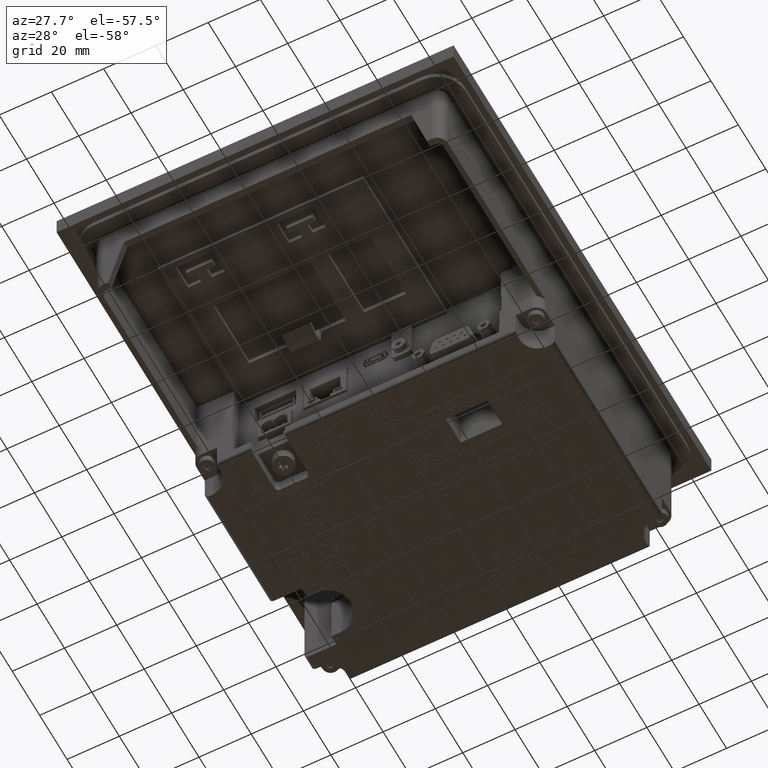
[diagram: clean part render]
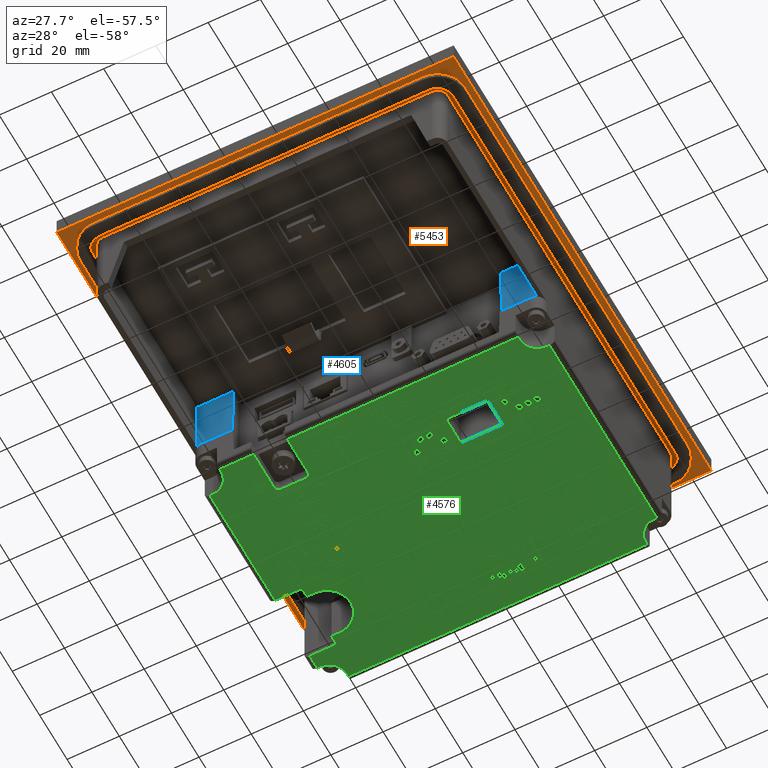
[diagram: same view with three faces highlighted in distinct colors, each labeled with its STEP entity id]
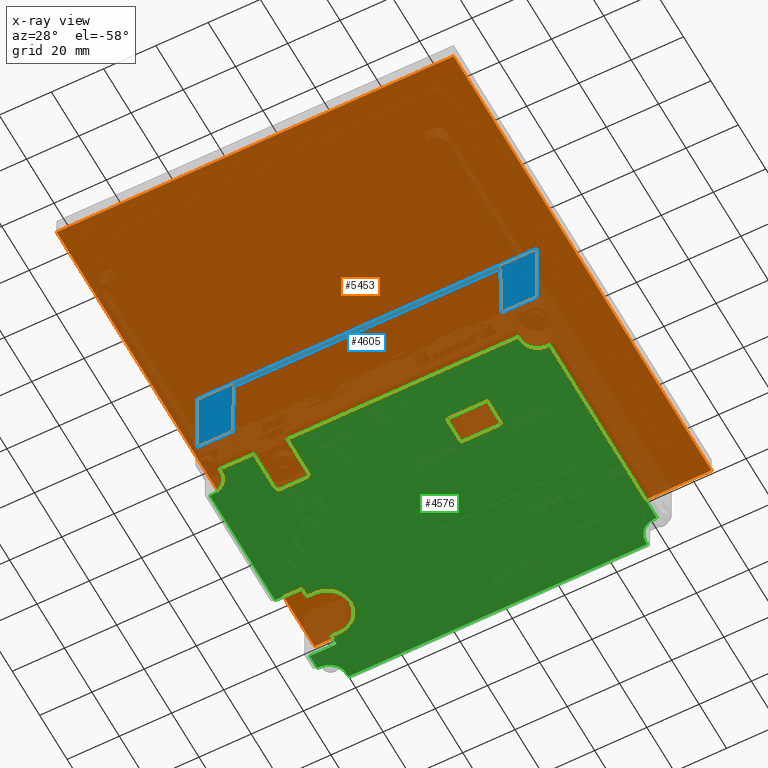
[diagram: x-ray of the same camera — body ghosted, the three highlighted faces saturated]
A machine part, auxiliary view with three faces highlighted in distinct colors.
The next image is the same camera in x-ray (body ghosted, the three faces saturated) — at least one of them is partly hidden behind the body in this view.
Their STEP definitions:

[orange] entity #5453 — the highlighted planar face has unit normal (0, 0, 1).
#5453=ADVANCED_FACE('',(#10416),#8014,.F.);
#8014=PLANE('',#51524);
#10416=FACE_OUTER_BOUND('',#13052,.T.);
#13052=EDGE_LOOP('',(#19666,#19667,#19668,#19669));
#19666=ORIENTED_EDGE('',*,*,#34583,.F.);
#19667=ORIENTED_EDGE('',*,*,#34589,.F.);
#19668=ORIENTED_EDGE('',*,*,#34587,.F.);
#19669=ORIENTED_EDGE('',*,*,#34585,.F.);
#29472=VERTEX_POINT('',#69658);
#29473=VERTEX_POINT('',#69660);
#29474=VERTEX_POINT('',#69664);
#29475=VERTEX_POINT('',#69668);
#34583=EDGE_CURVE('',#29472,#29473,#40775,.T.);
#34585=EDGE_CURVE('',#29473,#29474,#40777,.T.);
#34587=EDGE_CURVE('',#29474,#29475,#40779,.T.);
#34589=EDGE_CURVE('',#29475,#29472,#40781,.T.);
#40775=LINE('',#69659,#46467);
#40777=LINE('',#69663,#46469);
#40779=LINE('',#69667,#46471);
#40781=LINE('',#69671,#46473);
#46467=VECTOR('',#57629,1.);
#46469=VECTOR('',#57633,1.);
#46471=VECTOR('',#57637,1.);
#46473=VECTOR('',#57641,1.);
#51524=AXIS2_PLACEMENT_3D('',#69673,#57644,#57645);
#57629=DIRECTION('',(0.,-1.,0.));
#57633=DIRECTION('',(1.,0.,0.));
#57637=DIRECTION('',(0.,1.,0.));
#57641=DIRECTION('',(-1.,0.,0.));
#57644=DIRECTION('',(0.,0.,1.));
#57645=DIRECTION('',(1.,0.,0.));
#69658=CARTESIAN_POINT('',(-76.,130.65,-6.));
#69659=CARTESIAN_POINT('',(-76.,130.65,-6.));
#69660=CARTESIAN_POINT('',(-76.,-57.35,-6.));
#69663=CARTESIAN_POINT('',(-76.,-57.35,-6.));
#69664=CARTESIAN_POINT('',(76.,-57.35,-6.));
#69667=CARTESIAN_POINT('',(76.,-57.35,-6.));
#69668=CARTESIAN_POINT('',(76.,130.65,-6.));
#69671=CARTESIAN_POINT('',(76.,130.65,-6.));
#69673=CARTESIAN_POINT('',(-76.,-57.35,-6.));

[blue] entity #4605 — the highlighted planar face has unit normal (0, -1, 0).
#4605=ADVANCED_FACE('',(#9606),#7289,.T.);
#7289=PLANE('',#50469);
#9606=FACE_OUTER_BOUND('',#12141,.T.);
#12141=EDGE_LOOP('',(#15621,#15622,#15623,#15624,#15625,#15626,#15627,#15628));
#15621=ORIENTED_EDGE('',*,*,#32669,.F.);
#15622=ORIENTED_EDGE('',*,*,#32619,.T.);
#15623=ORIENTED_EDGE('',*,*,#32656,.T.);
#15624=ORIENTED_EDGE('',*,*,#32670,.F.);
#15625=ORIENTED_EDGE('',*,*,#32662,.F.);
#15626=ORIENTED_EDGE('',*,*,#32623,.T.);
#15627=ORIENTED_EDGE('',*,*,#32671,.F.);
#15628=ORIENTED_EDGE('',*,*,#32672,.F.);
#28205=VERTEX_POINT('',#65402);
#28206=VERTEX_POINT('',#65404);
#28208=VERTEX_POINT('',#65410);
#28209=VERTEX_POINT('',#65412);
#28230=VERTEX_POINT('',#65472);
#28233=VERTEX_POINT('',#65484);
#28234=VERTEX_POINT('',#65498);
#28235=VERTEX_POINT('',#65501);
#32619=EDGE_CURVE('',#28206,#28205,#39037,.T.);
#32623=EDGE_CURVE('',#28209,#28208,#39041,.T.);
#32656=EDGE_CURVE('',#28205,#28230,#39069,.T.);
#32662=EDGE_CURVE('',#28209,#28233,#39073,.T.);
#32669=EDGE_CURVE('',#28206,#28234,#39074,.T.);
#32670=EDGE_CURVE('',#28233,#28230,#39075,.T.);
#32671=EDGE_CURVE('',#28235,#28208,#39076,.T.);
#32672=EDGE_CURVE('',#28234,#28235,#39077,.T.);
#39037=LINE('',#65403,#44727);
#39041=LINE('',#65411,#44731);
#39069=LINE('',#65474,#44759);
#39073=LINE('',#65485,#44763);
#39074=LINE('',#65497,#44764);
#39075=LINE('',#65499,#44765);
#39076=LINE('',#65500,#44766);
#39077=LINE('',#65502,#44767);
#44727=VECTOR('',#53729,1.);
#44731=VECTOR('',#53735,1.);
#44759=VECTOR('',#53787,1.);
#44763=VECTOR('',#53801,1.);
#44764=VECTOR('',#53824,1.);
#44765=VECTOR('',#53825,1.);
#44766=VECTOR('',#53826,1.);
#44767=VECTOR('',#53827,1.);
#50469=AXIS2_PLACEMENT_3D('',#65503,#53828,#53829);
#53729=DIRECTION('',(-1.,0.,0.));
#53735=DIRECTION('',(-1.,0.,0.));
#53787=DIRECTION('',(0.,0.,1.));
#53801=DIRECTION('',(0.,0.,1.));
#53824=DIRECTION('',(0.0174524064372799,0.,0.999847695156391));
#53825=DIRECTION('',(-1.,0.,0.));
#53826=DIRECTION('',(0.0174524064372799,0.,-0.999847695156391));
#53827=DIRECTION('',(1.,0.,0.));
#53828=DIRECTION('',(0.,1.,0.));
#53829=DIRECTION('',(0.,0.,1.));
#65402=CARTESIAN_POINT('',(-65.06590840509,49.0211066486,-36.));
#65403=CARTESIAN_POINT('',(65.06590840509,49.0211066486,-36.));
#65404=CARTESIAN_POINT('',(-51.5411070127746,49.0211066486,-36.));
#65410=CARTESIAN_POINT('',(51.5411070127746,49.0211066486,-36.));
#65411=CARTESIAN_POINT('',(65.06590840509,49.0211066486,-36.));
#65412=CARTESIAN_POINT('',(65.06590840509,49.0211066486,-36.));
#65472=CARTESIAN_POINT('',(-65.06590840509,49.0211066486,-6.));
#65474=CARTESIAN_POINT('',(-65.06590840509,49.0211066486,-36.));
#65484=CARTESIAN_POINT('',(65.06590840509,49.0211066486,-6.));
#65485=CARTESIAN_POINT('',(65.06590840509,49.0211066486,-36.));
#65497=CARTESIAN_POINT('',(-51.7680228568414,49.0211066486,-49.));
#65498=CARTESIAN_POINT('',(-51.0523651947846,49.0211066486,-7.99999999999999));
#65499=CARTESIAN_POINT('',(65.06590840509,49.0211066486,-6.));
#65500=CARTESIAN_POINT('',(51.0523651947846,49.0211066486,-8.));
#65501=CARTESIAN_POINT('',(51.0523651947847,49.0211066486,-8.));
#65502=CARTESIAN_POINT('',(-51.0523651947846,49.0211066486,-8.));
#65503=CARTESIAN_POINT('',(65.06590840509,49.0211066486,-36.));

[green] entity #4576 — the highlighted planar face has unit normal (0, 0, -1).
#1213=FACE_BOUND('',#12101,.T.);
#1214=FACE_BOUND('',#12102,.T.);
#1626=CIRCLE('',#50377,9.075);
#1627=CIRCLE('',#50387,6.865414529289);
#1628=CIRCLE('',#50388,6.865414530411);
#1629=CIRCLE('',#50389,6.865414530942);
#1630=CIRCLE('',#50390,1.499999572595);
#1631=CIRCLE('',#50391,1.499999572637);
#1632=CIRCLE('',#50392,6.865414529722);
#4576=ADVANCED_FACE('',(#1213,#1214),#7269,.T.);
#7269=PLANE('',#50393);
#12101=EDGE_LOOP('',(#15346,#15347,#15348,#15349));
#12102=EDGE_LOOP('',(#15350,#15351,#15352,#15353,#15354,#15355,#15356,#15357,
#15358,#15359,#15360,#15361,#15362,#15363,#15364,#15365,#15366,#15367,#15368,
#15369,#15370,#15371,#15372,#15373,#15374,#15375,#15376,#15377,#15378,#15379));
#15346=ORIENTED_EDGE('',*,*,#32440,.T.);
#15347=ORIENTED_EDGE('',*,*,#32441,.T.);
#15348=ORIENTED_EDGE('',*,*,#32442,.T.);
#15349=ORIENTED_EDGE('',*,*,#32443,.T.);
#15350=ORIENTED_EDGE('',*,*,#32429,.T.);
#15351=ORIENTED_EDGE('',*,*,#32444,.T.);
#15352=ORIENTED_EDGE('',*,*,#32445,.T.);
#15353=ORIENTED_EDGE('',*,*,#32446,.T.);
#15354=ORIENTED_EDGE('',*,*,#32447,.T.);
#15355=ORIENTED_EDGE('',*,*,#32448,.T.);
#15356=ORIENTED_EDGE('',*,*,#32449,.T.);
#15357=ORIENTED_EDGE('',*,*,#32450,.T.);
#15358=ORIENTED_EDGE('',*,*,#32451,.T.);
#15359=ORIENTED_EDGE('',*,*,#32452,.T.);
#15360=ORIENTED_EDGE('',*,*,#32453,.T.);
#15361=ORIENTED_EDGE('',*,*,#32454,.T.);
#15362=ORIENTED_EDGE('',*,*,#32455,.T.);
#15363=ORIENTED_EDGE('',*,*,#32456,.T.);
#15364=ORIENTED_EDGE('',*,*,#32457,.T.);
#15365=ORIENTED_EDGE('',*,*,#32458,.F.);
#15366=ORIENTED_EDGE('',*,*,#32459,.F.);
#15367=ORIENTED_EDGE('',*,*,#32460,.F.);
#15368=ORIENTED_EDGE('',*,*,#32461,.F.);
#15369=ORIENTED_EDGE('',*,*,#32462,.F.);
#15370=ORIENTED_EDGE('',*,*,#32463,.T.);
#15371=ORIENTED_EDGE('',*,*,#32464,.F.);
#15372=ORIENTED_EDGE('',*,*,#32465,.F.);
#15373=ORIENTED_EDGE('',*,*,#32466,.F.);
#15374=ORIENTED_EDGE('',*,*,#32467,.T.);
#15375=ORIENTED_EDGE('',*,*,#32468,.T.);
#15376=ORIENTED_EDGE('',*,*,#32427,.T.);
#15377=ORIENTED_EDGE('',*,*,#32431,.T.);
#15378=ORIENTED_EDGE('',*,*,#32417,.T.);
#15379=ORIENTED_EDGE('',*,*,#32420,.T.);
#28018=VERTEX_POINT('',#64990);
#28019=VERTEX_POINT('',#64992);
#28020=VERTEX_POINT('',#64998);
#28025=VERTEX_POINT('',#65011);
#28026=VERTEX_POINT('',#65013);
#28027=VERTEX_POINT('',#65017);
#28036=VERTEX_POINT('',#65042);
#28037=VERTEX_POINT('',#65043);
#28038=VERTEX_POINT('',#65045);
#28039=VERTEX_POINT('',#65047);
#28040=VERTEX_POINT('',#65050);
#28041=VERTEX_POINT('',#65052);
#28042=VERTEX_POINT('',#65054);
#28043=VERTEX_POINT('',#65056);
#28044=VERTEX_POINT('',#65058);
#28045=VERTEX_POINT('',#65060);
#28046=VERTEX_POINT('',#65062);
#28047=VERTEX_POINT('',#65064);
#28048=VERTEX_POINT('',#65066);
#28049=VERTEX_POINT('',#65068);
#28050=VERTEX_POINT('',#65070);
#28051=VERTEX_POINT('',#65072);
#28052=VERTEX_POINT('',#65074);
#28053=VERTEX_POINT('',#65076);
#28054=VERTEX_POINT('',#65078);
#28055=VERTEX_POINT('',#65080);
#28056=VERTEX_POINT('',#65082);
#28057=VERTEX_POINT('',#65084);
#28058=VERTEX_POINT('',#65086);
#28059=VERTEX_POINT('',#65088);
#28060=VERTEX_POINT('',#65090);
#28061=VERTEX_POINT('',#65092);
#28062=VERTEX_POINT('',#65094);
#28063=VERTEX_POINT('',#65096);
#32417=EDGE_CURVE('',#28018,#28019,#1626,.T.);
#32420=EDGE_CURVE('',#28019,#28020,#38878,.T.);
#32427=EDGE_CURVE('',#28025,#28026,#38885,.T.);
#32429=EDGE_CURVE('',#28020,#28027,#38887,.T.);
#32431=EDGE_CURVE('',#28026,#28018,#38889,.T.);
#32440=EDGE_CURVE('',#28036,#28037,#38898,.T.);
#32441=EDGE_CURVE('',#28037,#28038,#38899,.T.);
#32442=EDGE_CURVE('',#28038,#28039,#38900,.T.);
#32443=EDGE_CURVE('',#28039,#28036,#38901,.T.);
#32444=EDGE_CURVE('',#28027,#28040,#38902,.T.);
#32445=EDGE_CURVE('',#28040,#28041,#38903,.T.);
#32446=EDGE_CURVE('',#28041,#28042,#38904,.T.);
#32447=EDGE_CURVE('',#28042,#28043,#1627,.T.);
#32448=EDGE_CURVE('',#28043,#28044,#38905,.T.);
#32449=EDGE_CURVE('',#28044,#28045,#38906,.T.);
#32450=EDGE_CURVE('',#28045,#28046,#38907,.T.);
#32451=EDGE_CURVE('',#28046,#28047,#1628,.T.);
#32452=EDGE_CURVE('',#28047,#28048,#38908,.T.);
#32453=EDGE_CURVE('',#28048,#28049,#38909,.T.);
#32454=EDGE_CURVE('',#28049,#28050,#38910,.T.);
#32455=EDGE_CURVE('',#28050,#28051,#1629,.T.);
#32456=EDGE_CURVE('',#28051,#28052,#38911,.T.);
#32457=EDGE_CURVE('',#28052,#28053,#38912,.T.);
#32458=EDGE_CURVE('',#28054,#28053,#38913,.T.);
#32459=EDGE_CURVE('',#28055,#28054,#1630,.T.);
#32460=EDGE_CURVE('',#28056,#28055,#38914,.T.);
#32461=EDGE_CURVE('',#28057,#28056,#1631,.T.);
#32462=EDGE_CURVE('',#28058,#28057,#38915,.T.);
#32463=EDGE_CURVE('',#28058,#28059,#38916,.T.);
#32464=EDGE_CURVE('',#28060,#28059,#38917,.T.);
#32465=EDGE_CURVE('',#28061,#28060,#1632,.T.);
#32466=EDGE_CURVE('',#28062,#28061,#38918,.T.);
#32467=EDGE_CURVE('',#28062,#28063,#38919,.T.);
#32468=EDGE_CURVE('',#28063,#28025,#38920,.T.);
#38878=LINE('',#64999,#44568);
#38885=LINE('',#65014,#44575);
#38887=LINE('',#65018,#44577);
#38889=LINE('',#65022,#44579);
#38898=LINE('',#65041,#44588);
#38899=LINE('',#65044,#44589);
#38900=LINE('',#65046,#44590);
#38901=LINE('',#65048,#44591);
#38902=LINE('',#65049,#44592);
#38903=LINE('',#65051,#44593);
#38904=LINE('',#65053,#44594);
#38905=LINE('',#65057,#44595);
#38906=LINE('',#65059,#44596);
#38907=LINE('',#65061,#44597);
#38908=LINE('',#65065,#44598);
#38909=LINE('',#65067,#44599);
#38910=LINE('',#65069,#44600);
#38911=LINE('',#65073,#44601);
#38912=LINE('',#65075,#44602);
#38913=LINE('',#65077,#44603);
#38914=LINE('',#65081,#44604);
#38915=LINE('',#65085,#44605);
#38916=LINE('',#65087,#44606);
#38917=LINE('',#65089,#44607);
#38918=LINE('',#65093,#44608);
#38919=LINE('',#65095,#44609);
#38920=LINE('',#65097,#44610);
#44568=VECTOR('',#53450,1.);
#44575=VECTOR('',#53461,1.);
#44577=VECTOR('',#53465,1.);
#44579=VECTOR('',#53471,1.);
#44588=VECTOR('',#53484,1.);
#44589=VECTOR('',#53485,1.);
#44590=VECTOR('',#53486,1.);
#44591=VECTOR('',#53487,1.);
#44592=VECTOR('',#53488,1.);
#44593=VECTOR('',#53489,1.);
#44594=VECTOR('',#53490,1.);
#44595=VECTOR('',#53493,1.);
#44596=VECTOR('',#53494,1.);
#44597=VECTOR('',#53495,1.);
#44598=VECTOR('',#53498,1.);
#44599=VECTOR('',#53499,1.);
#44600=VECTOR('',#53500,1.);
#44601=VECTOR('',#53503,1.);
#44602=VECTOR('',#53504,1.);
#44603=VECTOR('',#53505,1.);
#44604=VECTOR('',#53508,1.);
#44605=VECTOR('',#53511,1.);
#44606=VECTOR('',#53512,1.);
#44607=VECTOR('',#53513,1.);
#44608=VECTOR('',#53516,1.);
#44609=VECTOR('',#53517,1.);
#44610=VECTOR('',#53518,1.);
#50377=AXIS2_PLACEMENT_3D('',#64993,#53442,#53443);
#50387=AXIS2_PLACEMENT_3D('',#65055,#53491,#53492);
#50388=AXIS2_PLACEMENT_3D('',#65063,#53496,#53497);
#50389=AXIS2_PLACEMENT_3D('',#65071,#53501,#53502);
#50390=AXIS2_PLACEMENT_3D('',#65079,#53506,#53507);
#50391=AXIS2_PLACEMENT_3D('',#65083,#53509,#53510);
#50392=AXIS2_PLACEMENT_3D('',#65091,#53514,#53515);
#50393=AXIS2_PLACEMENT_3D('',#65098,#53519,#53520);
#53442=DIRECTION('',(0.,0.,1.));
#53443=DIRECTION('',(-0.0835509138381212,0.996503509676115,0.));
#53450=DIRECTION('',(0.999999999999994,1.09492597138893E-007,0.));
#53461=DIRECTION('',(1.09492597484918E-007,-0.999999999999994,0.));
#53465=DIRECTION('',(1.09492595901103E-007,-0.999999999999994,0.));
#53471=DIRECTION('',(-0.999999999999994,-1.0949259713686E-007,0.));
#53484=DIRECTION('',(-1.,0.,0.));
#53485=DIRECTION('',(0.,-1.,0.));
#53486=DIRECTION('',(1.,0.,0.));
#53487=DIRECTION('',(0.,1.,0.));
#53488=DIRECTION('',(1.,-3.43731543613015E-008,0.));
#53489=DIRECTION('',(0.,-1.,0.));
#53490=DIRECTION('',(-1.,-4.25262835742908E-015,0.));
#53491=DIRECTION('',(0.,0.,1.));
#53492=DIRECTION('',(-0.0383580136936105,0.999264060589332,0.));
#53493=DIRECTION('',(0.,-1.,0.));
#53494=DIRECTION('',(-1.,0.,0.));
#53495=DIRECTION('',(0.,1.,0.));
#53496=DIRECTION('',(0.,0.,1.));
#53497=DIRECTION('',(0.999264060589332,0.0383580136936111,0.));
#53498=DIRECTION('',(-1.,-2.12631417868818E-015,0.));
#53499=DIRECTION('',(0.,1.,0.));
#53500=DIRECTION('',(1.,0.,0.));
#53501=DIRECTION('',(0.,0.,1.));
#53502=DIRECTION('',(0.0383580136936108,-0.999264060589332,0.));
#53503=DIRECTION('',(-2.53553718606348E-015,1.,0.));
#53504=DIRECTION('',(1.,0.,0.));
#53505=DIRECTION('',(-1.58488356083863E-013,1.,0.));
#53506=DIRECTION('',(0.,0.,-1.));
#53507=DIRECTION('',(-1.,0.,0.));
#53508=DIRECTION('',(-1.,0.,0.));
#53509=DIRECTION('',(0.,0.,-1.));
#53510=DIRECTION('',(0.,-0.999999999999999,0.));
#53511=DIRECTION('',(-1.58086101373082E-013,-1.,0.));
#53512=DIRECTION('',(1.,0.,0.));
#53513=DIRECTION('',(-2.12631417870772E-015,1.,0.));
#53514=DIRECTION('',(0.,0.,-1.));
#53515=DIRECTION('',(-0.999264060589333,-0.0383580136936109,0.));
#53516=DIRECTION('',(-1.,0.,0.));
#53517=DIRECTION('',(0.,-1.,0.));
#53518=DIRECTION('',(-1.,-3.32219692368557E-008,0.));
#53519=DIRECTION('',(0.,0.,-1.));
#53520=DIRECTION('',(-1.,0.,0.));
#64990=CARTESIAN_POINT('',(50.9917754569191,-11.3067306496893,-54.));
#64992=CARTESIAN_POINT('',(50.9917754569199,-29.3932693503108,-54.));
#64993=CARTESIAN_POINT('',(51.75,-20.35,-54.));
#64998=CARTESIAN_POINT('',(54.7499999417794,-29.3932689388131,-54.));
#64999=CARTESIAN_POINT('',(50.9917754569199,-29.3932693503108,-54.));
#65011=CARTESIAN_POINT('',(54.7499975665271,-7.70000029855407,-54.));
#65013=CARTESIAN_POINT('',(54.7499979614373,-11.3067302381917,-54.));
#65014=CARTESIAN_POINT('',(54.7499975665271,-7.70000029855408,-54.));
#65017=CARTESIAN_POINT('',(54.7500003366897,-32.9999996911003,-54.));
#65018=CARTESIAN_POINT('',(54.7499999417794,-29.3932689388131,-54.));
#65022=CARTESIAN_POINT('',(54.7499979614373,-11.3067302381917,-54.));
#65041=CARTESIAN_POINT('',(-20.20703846952,29.88296153048,-54.));
#65042=CARTESIAN_POINT('',(-20.20703846952,29.88296153048,-54.));
#65043=CARTESIAN_POINT('',(-36.07296153048,29.88296153048,-54.));
#65044=CARTESIAN_POINT('',(-36.07296153048,29.88296153048,-54.));
#65045=CARTESIAN_POINT('',(-36.07296153048,19.21703846952,-54.));
#65046=CARTESIAN_POINT('',(-36.07296153048,19.21703846952,-54.));
#65047=CARTESIAN_POINT('',(-20.20703846952,19.21703846952,-54.));
#65048=CARTESIAN_POINT('',(-20.20703846952,19.21703846952,-54.));
#65049=CARTESIAN_POINT('',(54.7500003366897,-32.9999996911003,-54.));
#65050=CARTESIAN_POINT('',(65.,-33.0000000434251,-54.));
#65051=CARTESIAN_POINT('',(65.,45.65,-54.));
#65052=CARTESIAN_POINT('',(65.,-38.489637999834,-54.));
#65053=CARTESIAN_POINT('',(67.,-38.489637999834,-54.));
#65054=CARTESIAN_POINT('',(63.7366563354706,-38.489637999834,-54.));
#65055=CARTESIAN_POINT('',(64.0000000000004,-45.3500000000002,-54.));
#65056=CARTESIAN_POINT('',(57.1396379998342,-45.0866563354704,-54.));
#65057=CARTESIAN_POINT('',(57.1396379998342,-45.0866563354704,-54.));
#65058=CARTESIAN_POINT('',(57.1396379998342,-46.35,-54.));
#65059=CARTESIAN_POINT('',(-63.,-46.35,-54.));
#65060=CARTESIAN_POINT('',(-57.1396379987125,-46.35,-54.));
#65061=CARTESIAN_POINT('',(-57.1396379987125,-48.35,-54.));
#65062=CARTESIAN_POINT('',(-57.1396379987125,-45.0866563354301,-54.));
#65063=CARTESIAN_POINT('',(-64.,-45.35,-54.));
#65064=CARTESIAN_POINT('',(-63.7366563354301,-38.4896379987125,-54.));
#65065=CARTESIAN_POINT('',(-63.7366563354301,-38.4896379987125,-54.));
#65066=CARTESIAN_POINT('',(-65.,-38.4896379987125,-54.));
#65067=CARTESIAN_POINT('',(-65.,45.65,-54.));
#65068=CARTESIAN_POINT('',(-65.,39.7896379981821,-54.));
#65069=CARTESIAN_POINT('',(-67.,39.7896379981821,-54.));
#65070=CARTESIAN_POINT('',(-64.2633436645935,39.7896379981821,-54.));
#65071=CARTESIAN_POINT('',(-64.,46.6500000000001,-54.));
#65072=CARTESIAN_POINT('',(-57.1396379981819,46.9133436645904,-54.));
#65073=CARTESIAN_POINT('',(-57.1396379981819,46.9133436645904,-54.));
#65074=CARTESIAN_POINT('',(-57.1396379981819,47.65,-54.));
#65075=CARTESIAN_POINT('',(31.1999999999995,47.65,-54.));
#65076=CARTESIAN_POINT('',(31.1999999999998,47.65,-54.));
#65077=CARTESIAN_POINT('',(31.2000000000022,32.3999996486,-54.));
#65078=CARTESIAN_POINT('',(31.2000000000022,32.3999996486,-54.));
#65079=CARTESIAN_POINT('',(32.7,32.3999996486,-54.));
#65080=CARTESIAN_POINT('',(32.70000000001,30.89999964861,-54.));
#65081=CARTESIAN_POINT('',(42.7,30.89999964861,-54.));
#65082=CARTESIAN_POINT('',(42.7,30.900000075963,-54.));
#65083=CARTESIAN_POINT('',(42.7,32.3999996486,-54.));
#65084=CARTESIAN_POINT('',(44.2,32.39999964861,-54.));
#65085=CARTESIAN_POINT('',(44.2000000000027,49.65,-54.));
#65086=CARTESIAN_POINT('',(44.2000000000024,47.65,-54.));
#65087=CARTESIAN_POINT('',(57.1396379994009,47.65,-54.));
#65088=CARTESIAN_POINT('',(57.1396379994009,47.65,-54.));
#65089=CARTESIAN_POINT('',(57.1396379994009,46.3866563354601,-54.));
#65090=CARTESIAN_POINT('',(57.1396379994009,46.3866563354601,-54.));
#65091=CARTESIAN_POINT('',(64.0000000000001,46.6500000000001,-54.));
#65092=CARTESIAN_POINT('',(63.7366563354601,39.7896379994009,-54.));
#65093=CARTESIAN_POINT('',(67.,39.7896379994009,-54.));
#65094=CARTESIAN_POINT('',(65.,39.7896379994009,-54.));
#65095=CARTESIAN_POINT('',(65.,45.65,-54.));
#65096=CARTESIAN_POINT('',(65.,-7.70000009506947,-54.));
#65097=CARTESIAN_POINT('',(67.,-7.69999989158487,-54.));
#65098=CARTESIAN_POINT('',(-63.,45.65,-54.));